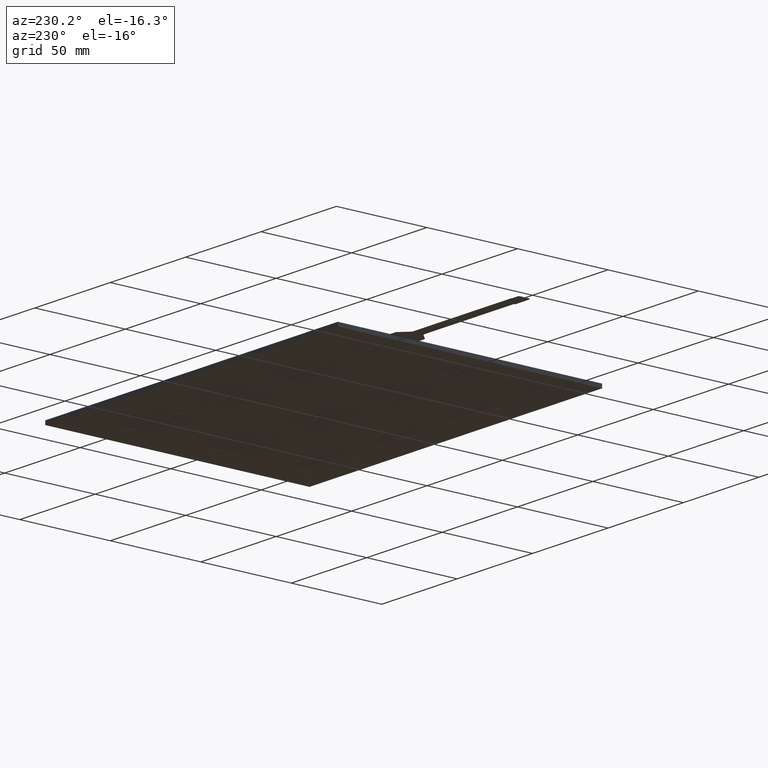
[diagram: clean part render]
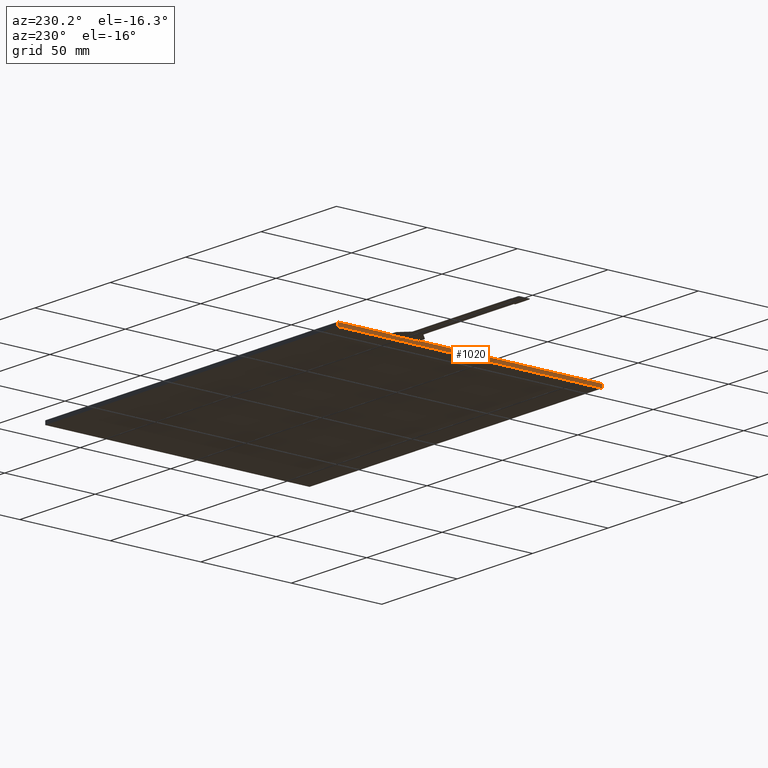
[diagram: same view with one face highlighted and labeled with its STEP entity id]
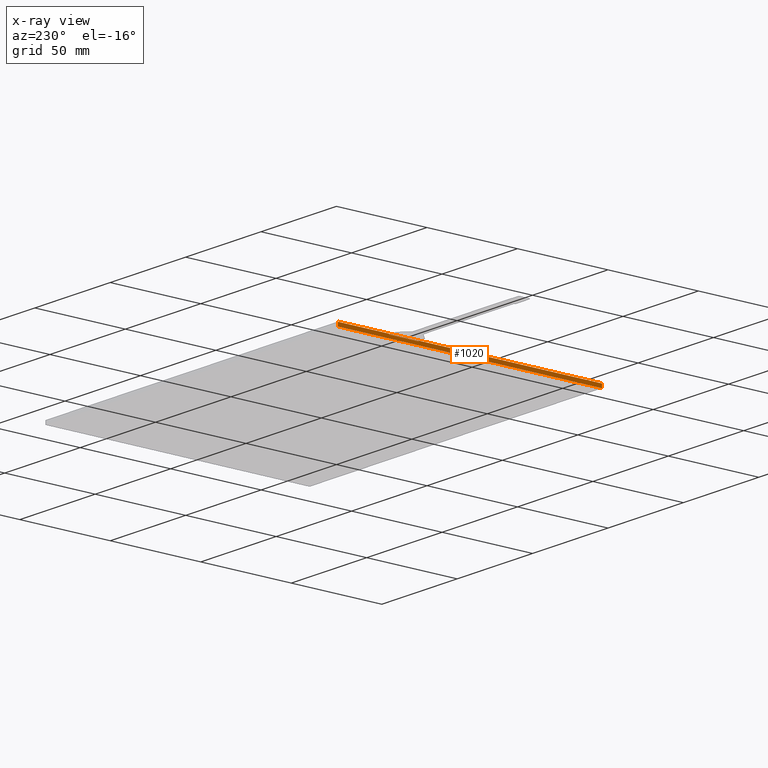
[diagram: x-ray of the same camera — body ghosted, the highlighted face saturated]
A machine part, auxiliary view. The second image highlights one B-rep face of the part: STEP entity #1020.
The next image is the same camera in x-ray: the body ghosted, the highlighted face saturated — about 0% of this face is hidden behind the body in this view.
In plain terms, the highlighted planar face has unit normal (-1, -0, 0).
Its self-contained STEP definition (entity closure, byte-faithful):
#48=FACE_BOUND('',#193,.T.);
#88=PLANE('',#1103);
#139=FACE_OUTER_BOUND('',#192,.T.);
#192=EDGE_LOOP('',(#941,#942,#943,#944));
#193=EDGE_LOOP('',(#945,#946,#947,#948));
#239=LINE('',#1465,#365);
#248=LINE('',#1488,#374);
#250=LINE('',#1492,#376);
#288=LINE('',#1566,#414);
#314=LINE('',#1623,#440);
#317=LINE('',#1629,#443);
#318=LINE('',#1631,#444);
#319=LINE('',#1632,#445);
#365=VECTOR('',#1185,10.);
#374=VECTOR('',#1210,10.);
#376=VECTOR('',#1214,10.);
#414=VECTOR('',#1290,10.);
#440=VECTOR('',#1340,10.);
#443=VECTOR('',#1345,10.);
#444=VECTOR('',#1346,10.);
#445=VECTOR('',#1347,10.);
#505=VERTEX_POINT('',#1462);
#506=VERTEX_POINT('',#1464);
#512=VERTEX_POINT('',#1486);
#513=VERTEX_POINT('',#1490);
#548=VERTEX_POINT('',#1620);
#549=VERTEX_POINT('',#1622);
#551=VERTEX_POINT('',#1628);
#552=VERTEX_POINT('',#1630);
#604=EDGE_CURVE('',#506,#505,#239,.T.);
#616=EDGE_CURVE('',#505,#512,#248,.T.);
#618=EDGE_CURVE('',#512,#513,#250,.T.);
#656=EDGE_CURVE('',#513,#506,#288,.T.);
#682=EDGE_CURVE('',#548,#549,#314,.T.);
#685=EDGE_CURVE('',#548,#551,#317,.T.);
#686=EDGE_CURVE('',#552,#551,#318,.T.);
#687=EDGE_CURVE('',#549,#552,#319,.T.);
#941=ORIENTED_EDGE('',*,*,#682,.F.);
#942=ORIENTED_EDGE('',*,*,#685,.T.);
#943=ORIENTED_EDGE('',*,*,#686,.F.);
#944=ORIENTED_EDGE('',*,*,#687,.F.);
#945=ORIENTED_EDGE('',*,*,#616,.T.);
#946=ORIENTED_EDGE('',*,*,#618,.T.);
#947=ORIENTED_EDGE('',*,*,#656,.T.);
#948=ORIENTED_EDGE('',*,*,#604,.T.);
#1020=ADVANCED_FACE('',(#139,#48),#88,.T.);
#1103=AXIS2_PLACEMENT_3D('',#1627,#1343,#1344);
#1185=DIRECTION('',(2.433365533425E-16,-1.,0.));
#1210=DIRECTION('',(0.,0.,-1.));
#1214=DIRECTION('',(-2.433365533425E-16,1.,0.));
#1290=DIRECTION('',(0.,0.,1.));
#1340=DIRECTION('',(2.433365533425E-16,-1.,0.));
#1343=DIRECTION('center_axis',(-1.,-2.433365533425E-16,0.));
#1344=DIRECTION('ref_axis',(-2.433365533425E-16,1.,0.));
#1345=DIRECTION('',(0.,0.,-1.));
#1346=DIRECTION('',(-2.433365533425E-16,1.,0.));
#1347=DIRECTION('',(0.,0.,-1.));
#1462=CARTESIAN_POINT('',(-98.5000000000001,28.505,-0.2));
#1464=CARTESIAN_POINT('',(-98.5000000000001,44.505,-0.2));
#1465=CARTESIAN_POINT('',(-98.5,-18.2475,-0.2));
#1486=CARTESIAN_POINT('',(-98.5000000000001,28.505,-0.3));
#1488=CARTESIAN_POINT('',(-98.5,28.505,-0.1));
#1490=CARTESIAN_POINT('',(-98.5000000000001,44.505,-0.3));
#1492=CARTESIAN_POINT('',(-98.5,-18.2475,-0.3));
#1566=CARTESIAN_POINT('',(-98.5000000000001,44.505,-0.1));
#1620=CARTESIAN_POINT('',(-98.5000000000001,73.,0.));
#1622=CARTESIAN_POINT('',(-98.5,-73.,0.));
#1623=CARTESIAN_POINT('',(-98.5000000000001,73.,0.));
#1627=CARTESIAN_POINT('Origin',(-98.5,-73.,0.));
#1628=CARTESIAN_POINT('',(-98.5000000000001,73.,-2.1));
#1629=CARTESIAN_POINT('',(-98.5000000000001,73.,0.));
#1630=CARTESIAN_POINT('',(-98.5,-73.,-2.1));
#1631=CARTESIAN_POINT('',(-98.5000000000001,73.,-2.1));
#1632=CARTESIAN_POINT('',(-98.5,-73.,0.));